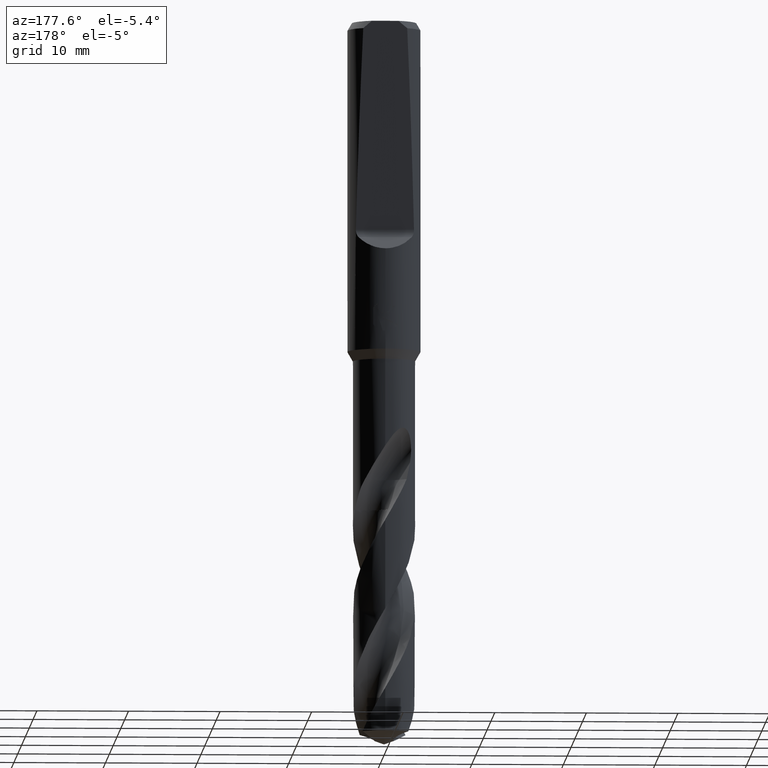
[diagram: clean part render]
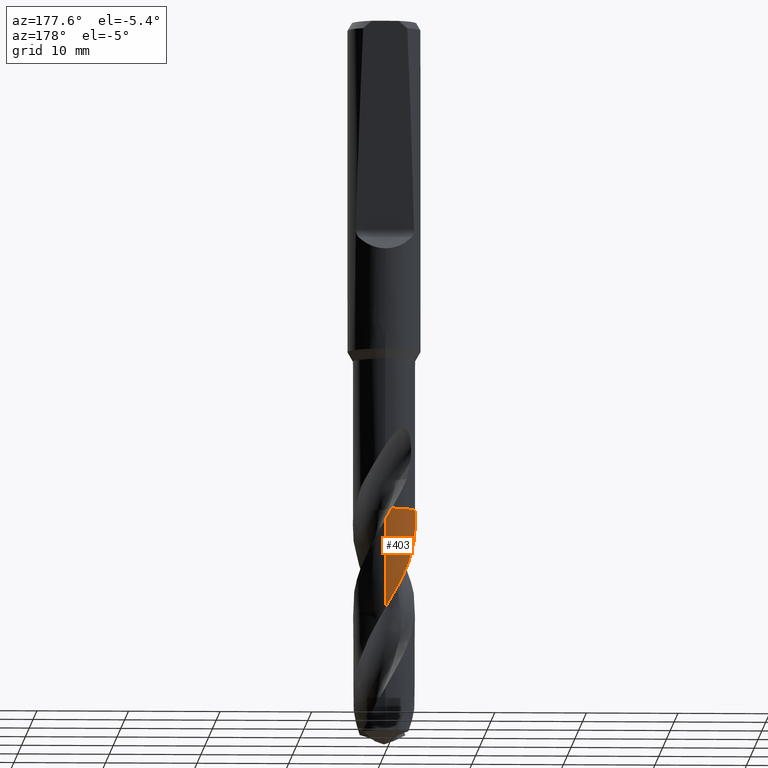
[diagram: same view with one face highlighted and labeled with its STEP entity id]
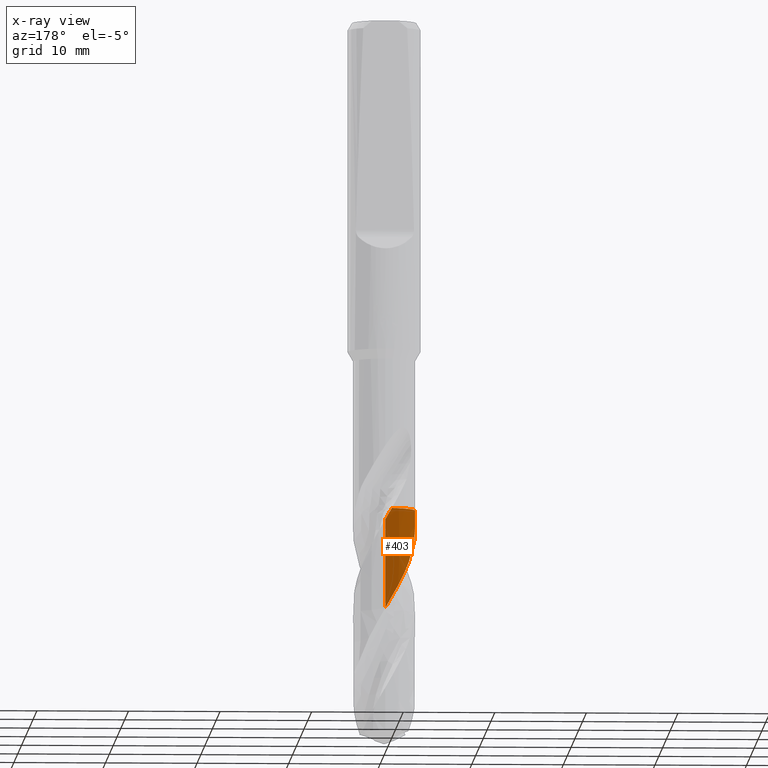
[diagram: x-ray of the same camera — body ghosted, the highlighted face saturated]
A machine part, auxiliary view. The second image highlights one B-rep face of the part: STEP entity #403.
The next image is the same camera in x-ray: the body ghosted, the highlighted face saturated — about 0% of this face is hidden behind the body in this view.
In plain terms, the highlighted conical surface has half-angle 0 deg.
Its self-contained STEP definition (entity closure, byte-faithful):
#403=ADVANCED_FACE('',(#976),#977,.T.);
#419=EDGE_CURVE('',#757,#845,#993,.T.);
#445=EDGE_CURVE('',#585,#757,#1021,.T.);
#467=EDGE_CURVE('',#845,#559,#1045,.T.);
#487=EDGE_CURVE('',#559,#605,#1066,.T.);
#559=VERTEX_POINT('',#1146);
#585=VERTEX_POINT('',#1176);
#605=VERTEX_POINT('',#1198);
#685=EDGE_CURVE('',#605,#733,#1287,.T.);
#733=VERTEX_POINT('',#1339);
#757=VERTEX_POINT('',#1366);
#765=EDGE_CURVE('',#733,#585,#1375,.T.);
#845=VERTEX_POINT('',#1459);
#976=FACE_OUTER_BOUND('',#2410,.T.);
#977=CONICAL_SURFACE('',#2411,3.39995,4.10466885827404E-006);
#993=B_SPLINE_CURVE_WITH_KNOTS('',3,(#2433,#2434,#2435,#2436,#2437,#2438,#2439,#2440,#2441,#2442,#2443,#2444,#2445,#2446,#2447,#2448,#2449,#2450,#2451,#2452,#2453,#2454,#2455,#2456,#2457,#2458,#2459,#2460,#2461,#2462,#2463,#2464,#2465,#2466,#2467,#2468,#2469,#2470,#2471,#2472,#2473,#2474,#2475,#2476,#2477,#2478,#2479,#2480,#2481,#2482,#2483,#2484,#2485,#2486,#2487,#2488,#2489,#2490,#2491,#2492,#2493,#2494,#2495,#2496),.UNSPECIFIED.,.F.,.F.,(4,2,2,2,2,2,2,2,2,2,2,2,2,2,2,2,2,2,2,2,2,2,2,2,2,2,2,2,2,2,2,4),(0.0,0.769418001097749,2.37333285641939,2.69803627619803,4.00157731848253,5.31024662654896,6.62222200486437,6.78389171123816,8.08380310209748,8.74074529823173,8.78115319469453,10.0788233192989,11.392699070863,12.7014338574071,13.3503686877474,14.6568653343633,15.3086104206493,16.6120235093914,17.9182678898144,18.5752572485268,19.1747929377074,19.2095298144376,20.321126299544,20.8119745893316,21.0415521844381,21.485169190723,23.1503342760303,23.7763709747948,24.8754530463774,25.7009768279111,26.9388093995732,28.1775908735309),.UNSPECIFIED.);
#1021=B_SPLINE_CURVE_WITH_KNOTS('',3,(#3324,#3325,#3326,#3327),.UNSPECIFIED.,.F.,.F.,(4,4),(0.0,0.00930681952685659),.UNSPECIFIED.);
#1045=LINE('',#3920,#3921);
#1066=B_SPLINE_CURVE_WITH_KNOTS('',3,(#3995,#3996,#3997,#3998,#3999,#4000,#4001,#4002,#4003,#4004,#4005,#4006,#4007,#4008,#4009,#4010,#4011,#4012,#4013,#4014,#4015,#4016,#4017,#4018,#4019,#4020,#4021,#4022,#4023,#4024,#4025,#4026,#4027,#4028,#4029,#4030,#4031,#4032,#4033,#4034,#4035,#4036,#4037,#4038,#4039,#4040,#4041,#4042,#4043,#4044,#4045,#4046,#4047,#4048,#4049,#4050,#4051,#4052,#4053,#4054,#4055,#4056,#4057,#4058),.UNSPECIFIED.,.F.,.F.,(4,2,2,2,2,2,2,2,2,2,2,2,2,2,2,2,2,2,2,2,2,2,2,2,2,2,2,2,2,2,2,4),(0.0,1.14072735336271,2.4570287164177,3.11245642353512,4.42752472949854,5.08324964891488,6.08450232848944,6.62972777100405,7.28542892187727,8.5416443845198,9.85325291153974,10.8807171637727,11.473488014811,12.7435847061994,13.3997557587577,14.4449815812447,14.9683399611075,15.4900738750308,16.5364860168773,17.0660632756815,17.7232398018248,18.9744927864613,19.8619202530008,20.9131152975862,21.37322790222,21.8032947664341,23.4233758903956,24.0292421290453,25.0932161456713,26.6876790824837,27.0868255180915,28.282003527686),.UNSPECIFIED.);
#1146=CARTESIAN_POINT('',(9.56132285320896E-015,3.39994499552694,-64.3620357953742));
#1176=CARTESIAN_POINT('',(-0.725376519320041,3.32161841806357,-53.4));
#1198=CARTESIAN_POINT('',(-3.24968195005788,-0.999443540054878,-53.4049999999999));
#1287=B_SPLINE_CURVE_WITH_KNOTS('',3,(#7001,#7002,#7003,#7004),.UNSPECIFIED.,.F.,.F.,(4,4),(0.0,0.0110706626834816),.UNSPECIFIED.);
#1339=CARTESIAN_POINT('',(-3.24882857609512,-1.00221399568542,-53.4));
#1366=CARTESIAN_POINT('',(-0.722538116723319,3.32223702035789,-53.405));
#1375=CIRCLE('',#7502,3.3999);
#1459=CARTESIAN_POINT('',(-2.07376253720276E-013,3.39990517422975,-54.6605717868534));
#2410=EDGE_LOOP('',(#7961,#7962,#7963,#7964,#7965,#7966));
#2411=AXIS2_PLACEMENT_3D('',#7967,#7968,#7969);
#2433=CARTESIAN_POINT('',(-0.72320991734421,3.3220908374067,-53.4038166611921));
#2434=CARTESIAN_POINT('',(-0.597315456295408,3.34949864230825,-53.625576950339));
#2435=CARTESIAN_POINT('',(-0.470116881213089,3.36969470514644,-53.8475169707262));
#2436=CARTESIAN_POINT('',(-0.0756716696253711,3.40960581776167,-54.5317904213764));
#2437=CARTESIAN_POINT('',(0.19328801512534,3.40498904150978,-54.9916673212666));
#2438=CARTESIAN_POINT('',(0.51286391145018,3.36144302005198,-55.5474666016536));
#2439=CARTESIAN_POINT('',(0.566471712240264,3.35282545623331,-55.6410244927626));
#2440=CARTESIAN_POINT('',(0.834094481915022,3.30320522229333,-56.110340980707));
#2441=CARTESIAN_POINT('',(1.04409768714051,3.24296151913715,-56.4854971875226));
#2442=CARTESIAN_POINT('',(1.45055517736187,3.08273009234247,-57.2383398654578));
#2443=CARTESIAN_POINT('',(1.64590191284048,2.98300183795812,-57.6144801294512));
#2444=CARTESIAN_POINT('',(2.01508198607485,2.74718052634709,-58.3699060838265));
#2445=CARTESIAN_POINT('',(2.18811094120466,2.61147522356577,-58.7470759118144));
#2446=CARTESIAN_POINT('',(2.36646824727772,2.44131941413617,-59.1717602965631));
#2447=CARTESIAN_POINT('',(2.38580849006681,2.42242260607364,-59.218345043875));
#2448=CARTESIAN_POINT('',(2.55859215558375,2.24952472245219,-59.6396196990525));
#2449=CARTESIAN_POINT('',(2.69717701929131,2.0813485857917,-60.0139053258061));
#2450=CARTESIAN_POINT('',(2.88018985202573,1.80999999990171,-60.5779710378508));
#2451=CARTESIAN_POINT('',(2.93718420670192,1.71597003188323,-60.767170581061));
#2452=CARTESIAN_POINT('',(2.99274950287435,1.61339001976868,-60.9681659994154));
#2453=CARTESIAN_POINT('',(2.99595124447954,1.60743690677483,-60.9798119108792));
#2454=CARTESIAN_POINT('',(3.10139462666132,1.40997279209906,-61.3655224159255));
#2455=CARTESIAN_POINT('',(3.18507770519097,1.20911249620944,-61.7392906983996));
#2456=CARTESIAN_POINT('',(3.31378508863189,0.791648069018208,-62.492206166213));
#2457=CARTESIAN_POINT('',(3.35800650710445,0.575882966403077,-62.8697390374751));
#2458=CARTESIAN_POINT('',(3.40410813199186,0.139788637014654,-63.62596529115));
#2459=CARTESIAN_POINT('',(3.40605810946917,-0.0796235784336697,-64.0024780028098));
#2460=CARTESIAN_POINT('',(3.37737124172414,-0.405938297741804,-64.5668366514488));
#2461=CARTESIAN_POINT('',(3.36268892381378,-0.513552922922129,-64.7537752800932));
#2462=CARTESIAN_POINT('',(3.30303642142436,-0.83506726704016,-65.3176287346101));
#2463=CARTESIAN_POINT('',(3.24255297000837,-1.04561407289601,-65.6936122734296));
#2464=CARTESIAN_POINT('',(3.12218357266158,-1.35038607770732,-66.2581692606646));
#2465=CARTESIAN_POINT('',(3.07727660943402,-1.44980535904486,-66.4458580587607));
#2466=CARTESIAN_POINT('',(2.92849813880294,-1.74101234964618,-67.0096540353419));
#2467=CARTESIAN_POINT('',(2.81084456152045,-1.92521021652646,-67.3849124380399));
#2468=CARTESIAN_POINT('',(2.54152172417845,-2.2689593976865,-68.1373634636662));
#2469=CARTESIAN_POINT('',(2.39046928167403,-2.42757593498277,-68.5131095829787));
#2470=CARTESIAN_POINT('',(2.1422253726114,-2.64248016495485,-69.079285710663));
#2471=CARTESIAN_POINT('',(2.05569441613194,-2.7103446680202,-69.2686395596957));
#2472=CARTESIAN_POINT('',(1.88416088297378,-2.83192062309164,-69.6309505203283));
#2473=CARTESIAN_POINT('',(1.79978168827112,-2.88628321789782,-69.8036952847959));
#2474=CARTESIAN_POINT('',(1.70809291117146,-2.93976790970843,-69.9865718835789));
#2475=CARTESIAN_POINT('',(1.70306431273182,-2.94268397620152,-69.9965867618529));
#2476=CARTESIAN_POINT('',(1.53685696852062,-3.03849824542451,-70.3271374240444));
#2477=CARTESIAN_POINT('',(1.36836002216275,-3.11800890328877,-70.647536787709));
#2478=CARTESIAN_POINT('',(1.11734500683974,-3.21217970034542,-71.1097014933392));
#2479=CARTESIAN_POINT('',(1.03942226918032,-3.23823540673184,-71.2512072489533));
#2480=CARTESIAN_POINT('',(0.923759451137313,-3.27230330523314,-71.458960808448));
#2481=CARTESIAN_POINT('',(0.886718243208128,-3.28253458684385,-71.5251577341584));
#2482=CARTESIAN_POINT('',(0.777611548007627,-3.31068953613884,-71.7192850016127));
#2483=CARTESIAN_POINT('',(0.705143074216434,-3.32687804000187,-71.8471285343741));
#2484=CARTESIAN_POINT('',(0.358460177013663,-3.39248916250526,-72.4553606471076));
#2485=CARTESIAN_POINT('',(0.0792835867475176,-3.41046716932658,-72.9342474501065));
#2486=CARTESIAN_POINT('',(-0.303621418712341,-3.38802026541679,-73.5950322012097));
#2487=CARTESIAN_POINT('',(-0.407867315942928,-3.3770552618165,-73.7754588178095));
#2488=CARTESIAN_POINT('',(-0.693191951384119,-3.33364620315593,-74.2731198380064));
#2489=CARTESIAN_POINT('',(-0.872475503708928,-3.2912822220437,-74.5898060100659));
#2490=CARTESIAN_POINT('',(-1.17893763234547,-3.19204079458841,-75.1449457623371));
#2491=CARTESIAN_POINT('',(-1.30765685122394,-3.14150470210656,-75.3826798960547));
#2492=CARTESIAN_POINT('',(-1.62078627447824,-2.99598249398059,-75.9778893258026));
#2493=CARTESIAN_POINT('',(-1.80031947549509,-2.89167157331131,-76.334391800279));
#2494=CARTESIAN_POINT('',(-2.13835343465425,-2.65149865358501,-77.0487133725183));
#2495=CARTESIAN_POINT('',(-2.29594721632988,-2.5162477320374,-77.4049813345836));
#2496=CARTESIAN_POINT('',(-2.44015728704387,-2.36762167891887,-77.7625012034949));
#3324=CARTESIAN_POINT('',(-0.725376519320043,3.32161841806358,-53.4));
#3325=CARTESIAN_POINT('',(-0.723853907839477,3.32195093791112,-53.4026823839558));
#3326=CARTESIAN_POINT('',(-0.722331087621508,3.32228240647612,-53.4053647785886));
#3327=CARTESIAN_POINT('',(-0.720808059784992,3.32261282360034,-53.4080471859463));
#3920=CARTESIAN_POINT('',(-4.1728013983579E-016,3.39995,-65.5812506017475));
#3921=VECTOR('',#8015,1.0);
#3995=CARTESIAN_POINT('',(2.56649139983084,-2.2300497515962,-77.7625012034949));
#3996=CARTESIAN_POINT('',(2.69188722283726,-2.08573373884299,-77.433817316348));
#3997=CARTESIAN_POINT('',(2.80450344604794,-1.93156693375471,-77.1031763723414));
#3998=CARTESIAN_POINT('',(3.01775696251463,-1.58155538037315,-76.395534606921));
#3999=CARTESIAN_POINT('',(3.11359625716335,-1.38338062174012,-76.0192359310611));
#4000=CARTESIAN_POINT('',(3.22754973273265,-1.07462860287269,-75.451635577341));
#4001=CARTESIAN_POINT('',(3.26044173481831,-0.970272120518586,-75.2625071626085));
#4002=CARTESIAN_POINT('',(3.34409478538901,-0.652046935202036,-74.6951965437886));
#4003=CARTESIAN_POINT('',(3.37921481741878,-0.434777526957932,-74.3191085529925));
#4004=CARTESIAN_POINT('',(3.40008316848396,-0.106354838202318,-73.7518294408642));
#4005=CARTESIAN_POINT('',(3.40173730721853,0.00305112765741752,-73.5626061975972));
#4006=CARTESIAN_POINT('',(3.39261589657205,0.279057462374808,-73.0858848567752));
#4007=CARTESIAN_POINT('',(3.37482843114914,0.445387438109592,-72.7990139964452));
#4008=CARTESIAN_POINT('',(3.32848255962503,0.699534410287704,-72.3544934782708));
#4009=CARTESIAN_POINT('',(3.30856457663565,0.788358417015001,-72.197918460736));
#4010=CARTESIAN_POINT('',(3.25696243573994,0.981826258589896,-71.8525019771839));
#4011=CARTESIAN_POINT('',(3.22374007808636,1.08594939269713,-71.6634412559109));
#4012=CARTESIAN_POINT('',(3.11229580938439,1.38467119408426,-71.1134697124057));
#4013=CARTESIAN_POINT('',(3.02107147318006,1.57380966861495,-70.7543842713667));
#4014=CARTESIAN_POINT('',(2.80008194137974,1.94093565971721,-70.0160642754185));
#4015=CARTESIAN_POINT('',(2.66933770554567,2.11717066402492,-69.6378942494858));
#4016=CARTESIAN_POINT('',(2.40735083830337,2.40704657716662,-68.965419692334));
#4017=CARTESIAN_POINT('',(2.28291472992991,2.52534680428953,-68.6711867859992));
#4018=CARTESIAN_POINT('',(2.07371831125246,2.69614314753714,-68.2050598254261));
#4019=CARTESIAN_POINT('',(1.994486471662,2.75527431694628,-68.0340537329195));
#4020=CARTESIAN_POINT('',(1.73748309560877,2.93015107627614,-67.4978812086685));
#4021=CARTESIAN_POINT('',(1.55146424285522,3.03275911729502,-67.1346713750624));
#4022=CARTESIAN_POINT('',(1.25658718720783,3.16111977566646,-66.5804655539214));
#4023=CARTESIAN_POINT('',(1.15420592222641,3.19990976188025,-66.3912196191314));
#4024=CARTESIAN_POINT('',(0.884834294673884,3.28740189546113,-65.90209422738));
#4025=CARTESIAN_POINT('',(0.715266570466788,3.32843607823566,-65.6029477355264));
#4026=CARTESIAN_POINT('',(0.45682972901934,3.37024990914426,-65.1524728459539));
#4027=CARTESIAN_POINT('',(0.37016938362878,3.3808611985045,-65.002299574718));
#4028=CARTESIAN_POINT('',(0.196643841018533,3.39536794808477,-64.7019931906733));
#4029=CARTESIAN_POINT('',(0.109879641247822,3.39927726722636,-64.5517714177713));
#4030=CARTESIAN_POINT('',(-0.150899704442858,3.40104851206536,-64.101450698487));
#4031=CARTESIAN_POINT('',(-0.324954294156244,3.38887158377053,-63.8022950404145));
#4032=CARTESIAN_POINT('',(-0.584874551580566,3.35042009549589,-63.3501772313733));
#4033=CARTESIAN_POINT('',(-0.671600766063471,3.33411357386729,-63.1983835556551));
#4034=CARTESIAN_POINT('',(-0.864137109067286,3.29010827267906,-62.8577240774603));
#4035=CARTESIAN_POINT('',(-0.969407374071913,3.26064117437857,-62.6686047197058));
#4036=CARTESIAN_POINT('',(-1.27066598006987,3.16042752832932,-62.1208162265239));
#4037=CARTESIAN_POINT('',(-1.46181876300317,3.07669619200373,-61.763900833575));
#4038=CARTESIAN_POINT('',(-1.77356132588966,2.90445472345439,-61.1503687668307));
#4039=CARTESIAN_POINT('',(-1.89797852660619,2.82471052565047,-60.8950189799055));
#4040=CARTESIAN_POINT('',(-2.15754329695685,2.63345494861649,-60.3389531671494));
#4041=CARTESIAN_POINT('',(-2.29016349673103,2.51898781234887,-60.0387713002711));
#4042=CARTESIAN_POINT('',(-2.46742699447602,2.34033502015902,-59.6055222004205));
#4043=CARTESIAN_POINT('',(-2.5194836224651,2.2841930623265,-59.4736910020636));
#4044=CARTESIAN_POINT('',(-2.61635146388482,2.17239383477838,-59.2183207385032));
#4045=CARTESIAN_POINT('',(-2.6613861396456,2.11698085172208,-59.0947556348191));
#4046=CARTESIAN_POINT('',(-2.86777083557862,1.84602229501378,-58.5066398648182));
#4047=CARTESIAN_POINT('',(-3.00484380130353,1.61332425972444,-58.0466800128461));
#4048=CARTESIAN_POINT('',(-3.15352393825587,1.2746966081617,-57.4084028655691));
#4049=CARTESIAN_POINT('',(-3.18986284193189,1.18082432951239,-57.2342211738142));
#4050=CARTESIAN_POINT('',(-3.27847769032226,0.917758918882935,-56.7552953146501));
#4051=CARTESIAN_POINT('',(-3.32182535479635,0.745844485789163,-56.4515397654089));
#4052=CARTESIAN_POINT('',(-3.39620361040851,0.309367101023536,-55.6896804243019));
#4053=CARTESIAN_POINT('',(-3.40998281668302,0.0433435411775643,-55.2319493052367));
#4054=CARTESIAN_POINT('',(-3.38834444592946,-0.287914041725674,-54.6606224188368));
#4055=CARTESIAN_POINT('',(-3.38206955333363,-0.354077786504395,-54.5463498452999));
#4056=CARTESIAN_POINT('',(-3.34928656660379,-0.61740642614376,-54.089430251735));
#4057=CARTESIAN_POINT('',(-3.30765163780691,-0.81097993465917,-53.7451138894006));
#4058=CARTESIAN_POINT('',(-3.24965276673462,-0.999538413683912,-53.4048287802752));
#7001=CARTESIAN_POINT('',(-3.25046103068019,-0.996906899037064,-53.4095775462727));
#7002=CARTESIAN_POINT('',(-3.24991838443578,-0.99867617751019,-53.406384911156));
#7003=CARTESIAN_POINT('',(-3.24937423309634,-1.00044521026177,-53.4031923951677));
#7004=CARTESIAN_POINT('',(-3.24882857609513,-1.00221399568541,-53.4));
#7502=AXIS2_PLACEMENT_3D('',#8391,#8392,#8393);
#7961=ORIENTED_EDGE('',*,*,#467,.T.);
#7962=ORIENTED_EDGE('',*,*,#487,.T.);
#7963=ORIENTED_EDGE('',*,*,#685,.T.);
#7964=ORIENTED_EDGE('',*,*,#765,.T.);
#7965=ORIENTED_EDGE('',*,*,#445,.T.);
#7966=ORIENTED_EDGE('',*,*,#419,.T.);
#7967=CARTESIAN_POINT('',(0.0,0.0,-65.5812506017475));
#7968=DIRECTION('',(0.0,-0.0,-1.0));
#7969=DIRECTION('',(0.0,1.0,0.0));
#8015=DIRECTION('',(-5.02660356416512E-022,4.10466885826252E-006,-0.999999999991576));
#8391=CARTESIAN_POINT('',(0.0,0.0,-53.4));
#8392=DIRECTION('',(0.0,0.0,-1.0));
#8393=DIRECTION('',(0.0,1.0,0.0));